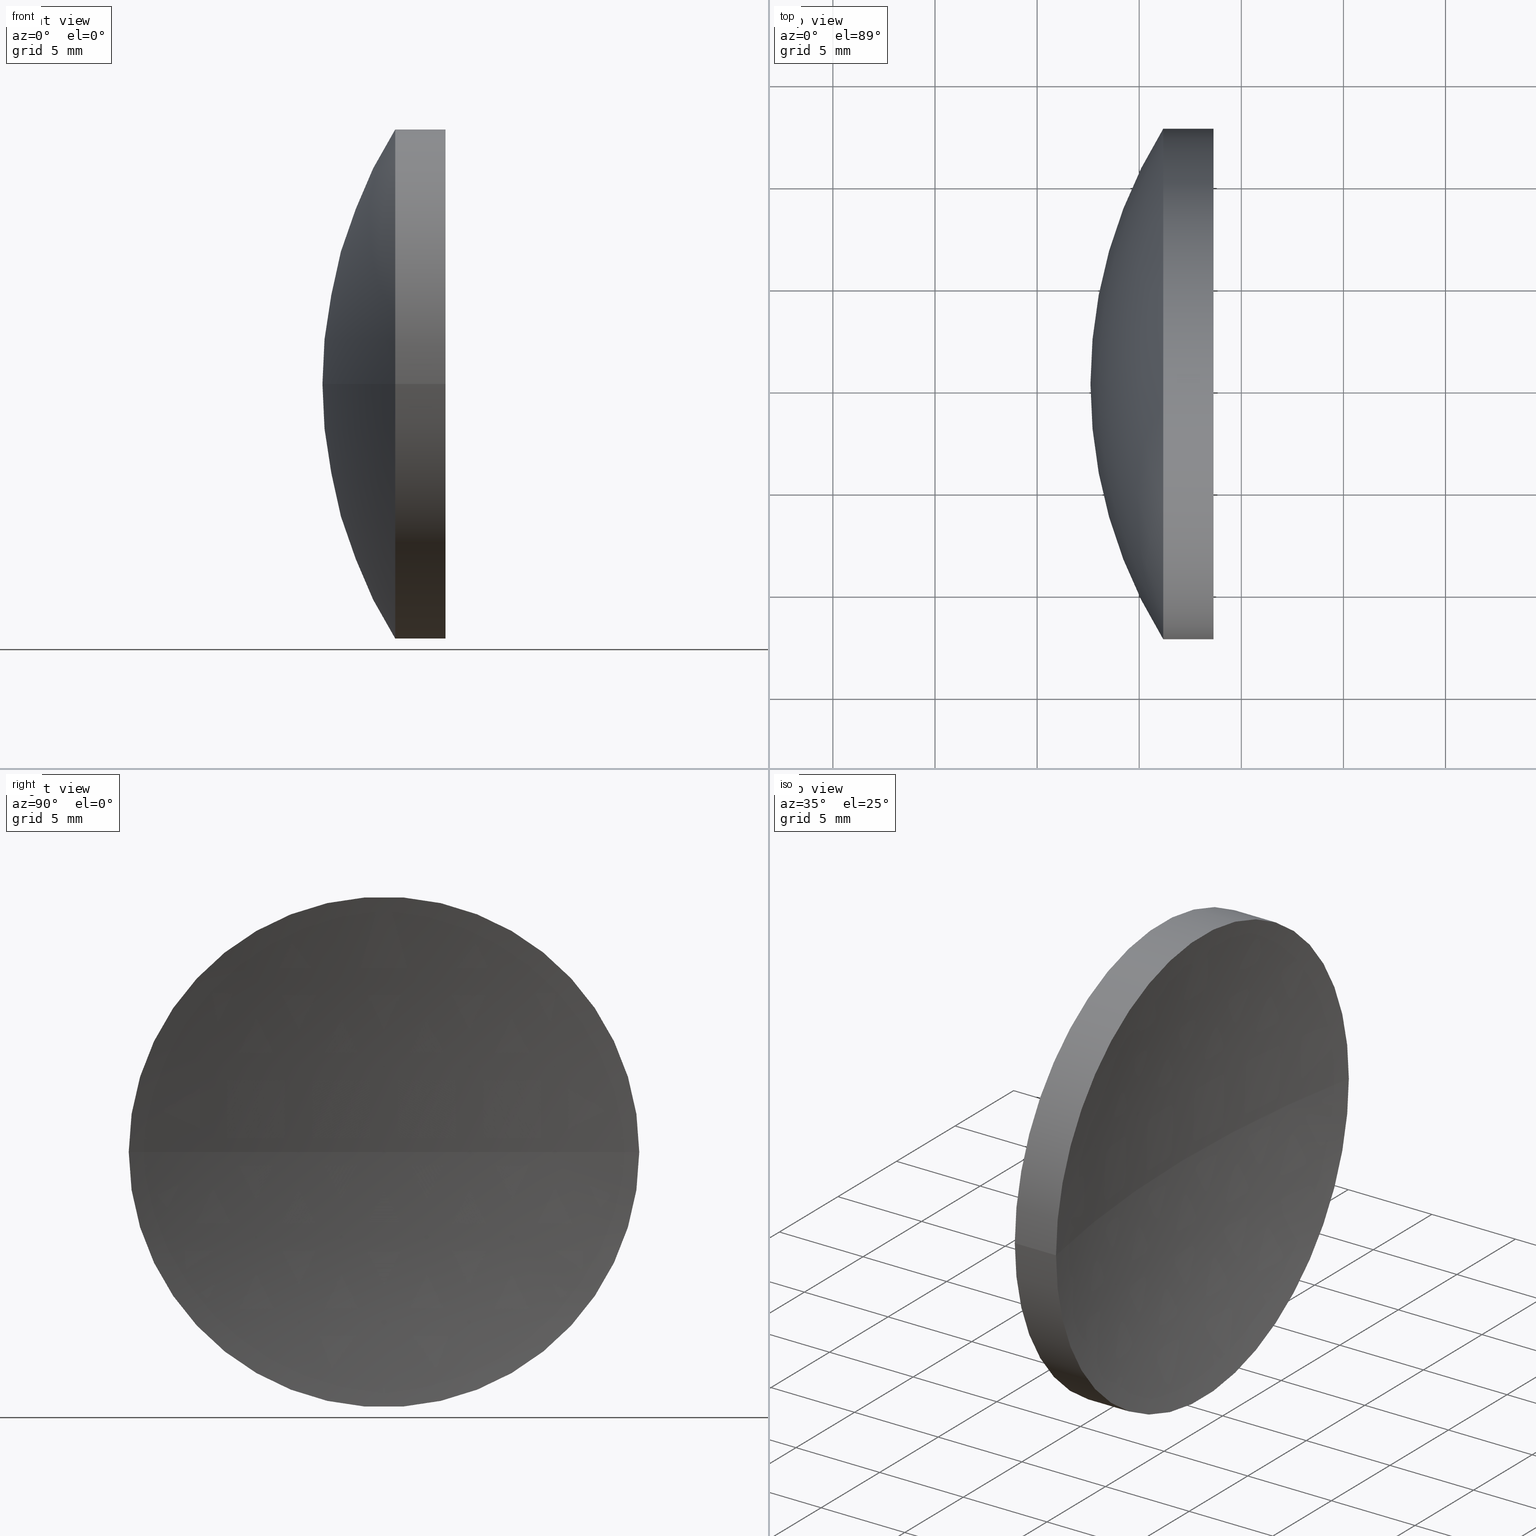
[diagram: canonical four-view strip — front | top / right | iso, engineering-drawing reading convention]
A machine part, canonical four-view strip (front | top / right | iso — engineering-drawing reading convention). The complete STEP part file that produces these views, byte-faithful:
ISO-10303-21;
HEADER;
FILE_DESCRIPTION (( 'STEP AP214' ),
    '1' );
FILE_NAME ('150005.STEP',
    '2019-07-04T03:22:05',
    ( '' ),
    ( '' ),
    'SwSTEP 2.0',
    'SolidWorks 2016',
    '' );
FILE_SCHEMA (( 'AUTOMOTIVE_DESIGN' ));
ENDSEC;

DATA;
#1 = EDGE_CURVE ( 'NONE', #27, #183, #155, .T. ) ;
#2 = FACE_OUTER_BOUND ( 'NONE', #182, .T. ) ;
#3 =( NAMED_UNIT ( * ) PLANE_ANGLE_UNIT ( ) SI_UNIT ( $, .RADIAN. ) );
#4 =( NAMED_UNIT ( * ) SI_UNIT ( $, .STERADIAN. ) SOLID_ANGLE_UNIT ( ) );
#5 = AXIS2_PLACEMENT_3D ( 'NONE', #48, #91, #138 ) ;
#6 = ORIENTED_EDGE ( 'NONE', *, *, #161, .F. ) ;
#7 = DIRECTION ( 'NONE',  ( 1.110223024625157900E-015, -1.000000000000000000, 0.0000000000000000000 ) ) ;
#8 = CARTESIAN_POINT ( 'NONE',  ( 115.9444912979631500, 77.71684047094031200, 1.530808498934189500E-015 ) ) ;
#9 = ADVANCED_BREP_SHAPE_REPRESENTATION ( '150005', ( #96, #83 ), #137 ) ;
#10 = ORIENTED_EDGE ( 'NONE', *, *, #1, .T. ) ;
#11 = EDGE_CURVE ( 'NONE', #98, #24, #36, .T. ) ;
#12 = ORIENTED_EDGE ( 'NONE', *, *, #41, .T. ) ;
#13 = PRESENTATION_LAYER_ASSIGNMENT (  '', '', ( #117 ) ) ;
#14 = AXIS2_PLACEMENT_3D ( 'NONE', #173, #75, #93 ) ;
#15 = ORIENTED_EDGE ( 'NONE', *, *, #161, .T. ) ;
#16 =( LENGTH_UNIT ( ) NAMED_UNIT ( * ) SI_UNIT ( .MILLI., .METRE. ) );
#17 = CARTESIAN_POINT ( 'NONE',  ( 115.9444912979631800, 52.71684047094034000, 0.0000000000000000000 ) ) ;
#18 = CARTESIAN_POINT ( 'NONE',  ( 191.6121934833099700, 65.21684047094032600, 0.0000000000000000000 ) ) ;
#19 = AXIS2_PLACEMENT_3D ( 'NONE', #51, #143, #188 ) ;
#20 = DIRECTION ( 'NONE',  ( 0.0000000000000000000, -1.000000000000000000, 0.0000000000000000000 ) ) ;
#21 = PRESENTATION_STYLE_ASSIGNMENT (( #37 ) ) ;
#22 = CARTESIAN_POINT ( 'NONE',  ( 128.6408507947504100, 77.71684047094034000, 0.0000000000000000000 ) ) ;
#23 = DIRECTION ( 'NONE',  ( -1.000000000000000000, -6.937607244762875000E-016, -0.0000000000000000000 ) ) ;
#24 = VERTEX_POINT ( 'NONE', #88 ) ;
#25 = EDGE_CURVE ( 'NONE', #98, #27, #192, .T. ) ;
#26 = CIRCLE ( 'NONE', #58, 12.49999999999999100 ) ;
#27 = VERTEX_POINT ( 'NONE', #45 ) ;
#28 = EDGE_CURVE ( 'NONE', #183, #86, #151, .T. ) ;
#29 = APPLICATION_PROTOCOL_DEFINITION ( 'draft international standard', 'automotive_design', 1998, #74 ) ;
#30 = COLOUR_RGB ( '',1.000000000000000000, 1.000000000000000000, 1.000000000000000000 ) ;
#31 = ORIENTED_EDGE ( 'NONE', *, *, #11, .T. ) ;
#32 = DIRECTION ( 'NONE',  ( 0.0000000000000000000, 0.0000000000000000000, -1.000000000000000000 ) ) ;
#33 = PRODUCT_DEFINITION ( 'δ֪', '', #124, #95 ) ;
#34 = DIRECTION ( 'NONE',  ( 1.000000000000000000, 0.0000000000000000000, 0.0000000000000000000 ) ) ;
#35 = CARTESIAN_POINT ( 'NONE',  ( 128.6408507947504300, 65.21684047094034000, 0.0000000000000000000 ) ) ;
#36 = CIRCLE ( 'NONE', #115, 64.20000000000000300 ) ;
#37 = SURFACE_STYLE_USAGE ( .BOTH. , #79 ) ;
#38 = ADVANCED_FACE ( 'NONE', ( #97 ), #59, .F. ) ;
#39 = CARTESIAN_POINT ( 'NONE',  ( 115.9444912979631700, 65.21684047094032600, 0.0000000000000000000 ) ) ;
#40 = ADVANCED_FACE ( 'NONE', ( #2 ), #141, .F. ) ;
#41 = EDGE_CURVE ( 'NONE', #125, #86, #65, .T. ) ;
#42 = EDGE_LOOP ( 'NONE', ( #118, #56, #12 ) ) ;
#43 = EDGE_CURVE ( 'NONE', #27, #98, #109, .T. ) ;
#44 = CYLINDRICAL_SURFACE ( 'NONE', #190, 12.49999999999998400 ) ;
#45 = CARTESIAN_POINT ( 'NONE',  ( 128.6408507947504600, 52.71684047094027600, -1.530808498934191500E-015 ) ) ;
#46 = DIRECTION ( 'NONE',  ( 1.000000000000000000, 0.0000000000000000000, 0.0000000000000000000 ) ) ;
#47 = UNCERTAINTY_MEASURE_WITH_UNIT (LENGTH_MEASURE( 1.000000000000000100E-005 ), #80, 'distance_accuracy_value', 'NONE');
#48 = CARTESIAN_POINT ( 'NONE',  ( 146.3121936984948400, 65.21684047094029800, 0.0000000000000000000 ) ) ;
#49 = AXIS2_PLACEMENT_3D ( 'NONE', #18, #32, #152 ) ;
#50 = DIRECTION ( 'NONE',  ( -0.0000000000000000000, 0.0000000000000000000, -1.000000000000000000 ) ) ;
#51 = CARTESIAN_POINT ( 'NONE',  ( 191.6121934833099700, 65.21684047094032600, 0.0000000000000000000 ) ) ;
#52 = ORIENTED_EDGE ( 'NONE', *, *, #63, .F. ) ;
#53 = VECTOR ( 'NONE', #144, 1000.000000000000000 ) ;
#54 = DIRECTION ( 'NONE',  ( 0.0000000000000000000, -1.000000000000000000, 0.0000000000000000000 ) ) ;
#55 = CARTESIAN_POINT ( 'NONE',  ( 126.1766529806496800, 65.21684047094034000, 0.0000000000000000000 ) ) ;
#56 = ORIENTED_EDGE ( 'NONE', *, *, #63, .T. ) ;
#57 = EDGE_CURVE ( 'NONE', #27, #24, #68, .T. ) ;
#58 = AXIS2_PLACEMENT_3D ( 'NONE', #127, #23, #54 ) ;
#59 = SPHERICAL_SURFACE ( 'NONE', #49, 64.20000000000000300 ) ;
#60 = APPLICATION_CONTEXT ( 'automotive_design' ) ;
#61 = DIRECTION ( 'NONE',  ( 1.000000000000000000, 0.0000000000000000000, 0.0000000000000000000 ) ) ;
#62 = UNCERTAINTY_MEASURE_WITH_UNIT (LENGTH_MEASURE( 1.000000000000000100E-005 ), #104, 'distance_accuracy_value', 'NONE');
#63 = EDGE_CURVE ( 'NONE', #183, #125, #26, .T. ) ;
#64 = DIRECTION ( 'NONE',  ( 0.0000000000000000000, -0.0000000000000000000, 1.000000000000000000 ) ) ;
#65 = CIRCLE ( 'NONE', #90, 23.70000000000002800 ) ;
#66 = DIRECTION ( 'NONE',  ( -1.171121333992780600E-015, 1.000000000000000000, 0.0000000000000000000 ) ) ;
#67 = DIRECTION ( 'NONE',  ( -1.171121333992780600E-015, 1.000000000000000000, 0.0000000000000000000 ) ) ;
#68 = CIRCLE ( 'NONE', #19, 64.19999999999998900 ) ;
#69 = EDGE_LOOP ( 'NONE', ( #164, #163, #116 ) ) ;
#70 = SURFACE_STYLE_FILL_AREA ( #122 ) ;
#71 = AXIS2_PLACEMENT_3D ( 'NONE', #76, #108, #20 ) ;
#72 = SURFACE_SIDE_STYLE ('',( #70 ) ) ;
#73 = ORIENTED_EDGE ( 'NONE', *, *, #43, .T. ) ;
#74 = APPLICATION_CONTEXT ( 'automotive_design' ) ;
#75 = DIRECTION ( 'NONE',  ( 0.0000000000000000000, 0.0000000000000000000, -1.000000000000000000 ) ) ;
#76 = CARTESIAN_POINT ( 'NONE',  ( 128.6408507947504300, 65.21684047094034000, 0.0000000000000000000 ) ) ;
#77 = EDGE_LOOP ( 'NONE', ( #113, #89, #103 ) ) ;
#78 = DIRECTION ( 'NONE',  ( -1.000000000000000000, -6.937607244762875000E-016, -0.0000000000000000000 ) ) ;
#79 = SURFACE_SIDE_STYLE ('',( #146 ) ) ;
#80 =( LENGTH_UNIT ( ) NAMED_UNIT ( * ) SI_UNIT ( .MILLI., .METRE. ) );
#81 = CYLINDRICAL_SURFACE ( 'NONE', #126, 12.49999999999998400 ) ;
#82 = PRESENTATION_LAYER_ASSIGNMENT (  '', '', ( #180 ) ) ;
#83 = AXIS2_PLACEMENT_3D ( 'NONE', #85, #101, #61 ) ;
#84 = EDGE_LOOP ( 'NONE', ( #6, #189, #10, #168 ) ) ;
#85 = CARTESIAN_POINT ( 'NONE',  ( 0.0000000000000000000, 0.0000000000000000000, 0.0000000000000000000 ) ) ;
#86 = VERTEX_POINT ( 'NONE', #107 ) ;
#87 = FACE_OUTER_BOUND ( 'NONE', #42, .T. ) ;
#88 = CARTESIAN_POINT ( 'NONE',  ( 127.4121934833099500, 65.21684047094028400, 0.0000000000000000000 ) ) ;
#89 = ORIENTED_EDGE ( 'NONE', *, *, #28, .T. ) ;
#90 = AXIS2_PLACEMENT_3D ( 'NONE', #153, #174, #34 ) ;
#91 = DIRECTION ( 'NONE',  ( -8.496118506040342700E-032, 1.224646799147353200E-016, -1.000000000000000000 ) ) ;
#92 = PRODUCT ( '150005', '150005', '', ( #181 ) ) ;
#93 = DIRECTION ( 'NONE',  ( -8.646596764993431500E-016, 1.000000000000000000, 0.0000000000000000000 ) ) ;
#94 = DIRECTION ( 'NONE',  ( -1.000000000000000000, -6.937607244762875000E-016, -0.0000000000000000000 ) ) ;
#95 = PRODUCT_DEFINITION_CONTEXT ( 'detailed design', #60, 'design' ) ;
#96 = MANIFOLD_SOLID_BREP ( '��ת1', #134 ) ;
#97 = FACE_OUTER_BOUND ( 'NONE', #69, .T. ) ;
#98 = VERTEX_POINT ( 'NONE', #22 ) ;
#99 = PRODUCT_RELATED_PRODUCT_CATEGORY ( 'part', '', ( #92 ) ) ;
#100 =( GEOMETRIC_REPRESENTATION_CONTEXT ( 3 ) GLOBAL_UNCERTAINTY_ASSIGNED_CONTEXT ( ( #47 ) ) GLOBAL_UNIT_ASSIGNED_CONTEXT ( ( #80, #157, #159 ) ) REPRESENTATION_CONTEXT ( 'NONE', 'WORKASPACE' ) );
#101 = DIRECTION ( 'NONE',  ( 0.0000000000000000000, 0.0000000000000000000, 1.000000000000000000 ) ) ;
#102 =( NAMED_UNIT ( * ) PLANE_ANGLE_UNIT ( ) SI_UNIT ( $, .RADIAN. ) );
#103 = ORIENTED_EDGE ( 'NONE', *, *, #41, .F. ) ;
#104 =( LENGTH_UNIT ( ) NAMED_UNIT ( * ) SI_UNIT ( .MILLI., .METRE. ) );
#105 =( NAMED_UNIT ( * ) SI_UNIT ( $, .STERADIAN. ) SOLID_ANGLE_UNIT ( ) );
#106 = PRESENTATION_STYLE_ASSIGNMENT (( #121 ) ) ;
#107 = CARTESIAN_POINT ( 'NONE',  ( 122.6121936984948100, 65.21684047094028400, 0.0000000000000000000 ) ) ;
#108 = DIRECTION ( 'NONE',  ( -1.000000000000000000, -6.937607244762875000E-016, -0.0000000000000000000 ) ) ;
#109 = CIRCLE ( 'NONE', #71, 12.49999999999999100 ) ;
#110 = DIRECTION ( 'NONE',  ( 1.110223024625157900E-015, -1.000000000000000000, 0.0000000000000000000 ) ) ;
#111 = ADVANCED_FACE ( 'NONE', ( #149 ), #177, .T. ) ;
#112 = CARTESIAN_POINT ( 'NONE',  ( 126.1766529806496800, 77.71684047094034000, 1.530808498934190300E-015 ) ) ;
#113 = ORIENTED_EDGE ( 'NONE', *, *, #145, .T. ) ;
#114 = COLOUR_RGB ( '',1.000000000000000000, 1.000000000000000000, 1.000000000000000000 ) ;
#115 = AXIS2_PLACEMENT_3D ( 'NONE', #169, #64, #46 ) ;
#116 = ORIENTED_EDGE ( 'NONE', *, *, #11, .F. ) ;
#117 = STYLED_ITEM ( 'NONE', ( #106 ), #9 ) ;
#118 = ORIENTED_EDGE ( 'NONE', *, *, #28, .F. ) ;
#119 = EDGE_LOOP ( 'NONE', ( #73, #15, #52, #172 ) ) ;
#120 = FILL_AREA_STYLE_COLOUR ( '', #114 ) ;
#121 = SURFACE_STYLE_USAGE ( .BOTH. , #72 ) ;
#122 = FILL_AREA_STYLE ('',( #120 ) ) ;
#123 = FACE_OUTER_BOUND ( 'NONE', #119, .T. ) ;
#124 = PRODUCT_DEFINITION_FORMATION_WITH_SPECIFIED_SOURCE ( '�κ�', '', #92, .NOT_KNOWN. ) ;
#125 = VERTEX_POINT ( 'NONE', #112 ) ;
#126 = AXIS2_PLACEMENT_3D ( 'NONE', #130, #176, #7 ) ;
#127 = CARTESIAN_POINT ( 'NONE',  ( 126.1766529806496800, 65.21684047094034000, 0.0000000000000000000 ) ) ;
#128 = ADVANCED_FACE ( 'NONE', ( #165 ), #81, .T. ) ;
#129 =( GEOMETRIC_REPRESENTATION_CONTEXT ( 3 ) GLOBAL_UNCERTAINTY_ASSIGNED_CONTEXT ( ( #171 ) ) GLOBAL_UNIT_ASSIGNED_CONTEXT ( ( #16, #102, #105 ) ) REPRESENTATION_CONTEXT ( 'NONE', 'WORKASPACE' ) );
#130 = CARTESIAN_POINT ( 'NONE',  ( 115.9444912979631700, 65.21684047094032600, 0.0000000000000000000 ) ) ;
#131 = CARTESIAN_POINT ( 'NONE',  ( 146.3121936984948400, 65.21684047094029800, 0.0000000000000000000 ) ) ;
#132 = ADVANCED_FACE ( 'NONE', ( #87 ), #133, .T. ) ;
#133 = SPHERICAL_SURFACE ( 'NONE', #154, 23.70000000000001400 ) ;
#134 = CLOSED_SHELL ( 'NONE', ( #111, #162, #38, #40, #128, #132 ) ) ;
#135 = APPLICATION_PROTOCOL_DEFINITION ( 'draft international standard', 'automotive_design', 1998, #60 ) ;
#136 = CARTESIAN_POINT ( 'NONE',  ( 126.1766529806496800, 52.71684047094034800, 0.0000000000000000000 ) ) ;
#137 =( GEOMETRIC_REPRESENTATION_CONTEXT ( 3 ) GLOBAL_UNCERTAINTY_ASSIGNED_CONTEXT ( ( #62 ) ) GLOBAL_UNIT_ASSIGNED_CONTEXT ( ( #104, #3, #4 ) ) REPRESENTATION_CONTEXT ( 'NONE', 'WORKASPACE' ) );
#138 = DIRECTION ( 'NONE',  ( 0.0000000000000000000, 1.000000000000000000, 1.224646799147353200E-016 ) ) ;
#139 = FILL_AREA_STYLE_COLOUR ( '', #30 ) ;
#140 = DIRECTION ( 'NONE',  ( 0.0000000000000000000, -1.000000000000000000, 0.0000000000000000000 ) ) ;
#141 = SPHERICAL_SURFACE ( 'NONE', #14, 64.20000000000000300 ) ;
#142 = DIRECTION ( 'NONE',  ( -0.0000000000000000000, 0.0000000000000000000, -1.000000000000000000 ) ) ;
#143 = DIRECTION ( 'NONE',  ( -8.496118506040342700E-032, 1.224646799147353200E-016, -1.000000000000000000 ) ) ;
#144 = DIRECTION ( 'NONE',  ( -1.000000000000000000, -6.937607244762875000E-016, -0.0000000000000000000 ) ) ;
#145 = EDGE_CURVE ( 'NONE', #125, #183, #184, .T. ) ;
#146 = SURFACE_STYLE_FILL_AREA ( #158 ) ;
#147 = MECHANICAL_DESIGN_GEOMETRIC_PRESENTATION_REPRESENTATION (  '', ( #117 ), #129 ) ;
#148 = ORIENTED_EDGE ( 'NONE', *, *, #57, .F. ) ;
#149 = FACE_OUTER_BOUND ( 'NONE', #77, .T. ) ;
#150 = SHAPE_DEFINITION_REPRESENTATION ( #167, #9 ) ;
#151 = CIRCLE ( 'NONE', #5, 23.70000000000001400 ) ;
#152 = DIRECTION ( 'NONE',  ( -8.646596764993431500E-016, 1.000000000000000000, 0.0000000000000000000 ) ) ;
#153 = CARTESIAN_POINT ( 'NONE',  ( 146.3121936984948400, 65.21684047094029800, 0.0000000000000000000 ) ) ;
#154 = AXIS2_PLACEMENT_3D ( 'NONE', #131, #50, #66 ) ;
#155 = LINE ( 'NONE', #17, #186 ) ;
#156 = DIRECTION ( 'NONE',  ( 0.0000000000000000000, -1.000000000000000000, 0.0000000000000000000 ) ) ;
#157 =( NAMED_UNIT ( * ) PLANE_ANGLE_UNIT ( ) SI_UNIT ( $, .RADIAN. ) );
#158 = FILL_AREA_STYLE ('',( #139 ) ) ;
#159 =( NAMED_UNIT ( * ) SI_UNIT ( $, .STERADIAN. ) SOLID_ANGLE_UNIT ( ) );
#160 = LINE ( 'NONE', #8, #53 ) ;
#161 = EDGE_CURVE ( 'NONE', #98, #125, #160, .T. ) ;
#162 = ADVANCED_FACE ( 'NONE', ( #123 ), #44, .T. ) ;
#163 = ORIENTED_EDGE ( 'NONE', *, *, #57, .T. ) ;
#164 = ORIENTED_EDGE ( 'NONE', *, *, #43, .F. ) ;
#165 = FACE_OUTER_BOUND ( 'NONE', #84, .T. ) ;
#166 = AXIS2_PLACEMENT_3D ( 'NONE', #55, #175, #140 ) ;
#167 = PRODUCT_DEFINITION_SHAPE ( 'NONE', 'NONE',  #33 ) ;
#168 = ORIENTED_EDGE ( 'NONE', *, *, #145, .F. ) ;
#169 = CARTESIAN_POINT ( 'NONE',  ( 191.6121934833099700, 65.21684047094032600, 0.0000000000000000000 ) ) ;
#170 = AXIS2_PLACEMENT_3D ( 'NONE', #35, #185, #156 ) ;
#171 = UNCERTAINTY_MEASURE_WITH_UNIT (LENGTH_MEASURE( 1.000000000000000100E-005 ), #16, 'distance_accuracy_value', 'NONE');
#172 = ORIENTED_EDGE ( 'NONE', *, *, #1, .F. ) ;
#173 = CARTESIAN_POINT ( 'NONE',  ( 191.6121934833099700, 65.21684047094032600, 0.0000000000000000000 ) ) ;
#174 = DIRECTION ( 'NONE',  ( -0.0000000000000000000, 0.0000000000000000000, 1.000000000000000000 ) ) ;
#175 = DIRECTION ( 'NONE',  ( -1.000000000000000000, -6.937607244762875000E-016, -0.0000000000000000000 ) ) ;
#176 = DIRECTION ( 'NONE',  ( -1.000000000000000000, -6.937607244762875000E-016, -0.0000000000000000000 ) ) ;
#177 = SPHERICAL_SURFACE ( 'NONE', #179, 23.70000000000001400 ) ;
#178 = ORIENTED_EDGE ( 'NONE', *, *, #25, .F. ) ;
#179 = AXIS2_PLACEMENT_3D ( 'NONE', #187, #142, #67 ) ;
#180 = STYLED_ITEM ( 'NONE', ( #21 ), #96 ) ;
#181 = PRODUCT_CONTEXT ( 'NONE', #74, 'mechanical' ) ;
#182 = EDGE_LOOP ( 'NONE', ( #148, #178, #31 ) ) ;
#183 = VERTEX_POINT ( 'NONE', #136 ) ;
#184 = CIRCLE ( 'NONE', #166, 12.49999999999999100 ) ;
#185 = DIRECTION ( 'NONE',  ( -1.000000000000000000, -6.937607244762875000E-016, -0.0000000000000000000 ) ) ;
#186 = VECTOR ( 'NONE', #78, 1000.000000000000000 ) ;
#187 = CARTESIAN_POINT ( 'NONE',  ( 146.3121936984948400, 65.21684047094029800, 0.0000000000000000000 ) ) ;
#188 = DIRECTION ( 'NONE',  ( 0.0000000000000000000, 1.000000000000000000, 1.224646799147353700E-016 ) ) ;
#189 = ORIENTED_EDGE ( 'NONE', *, *, #25, .T. ) ;
#190 = AXIS2_PLACEMENT_3D ( 'NONE', #39, #94, #110 ) ;
#191 = MECHANICAL_DESIGN_GEOMETRIC_PRESENTATION_REPRESENTATION (  '', ( #180 ), #100 ) ;
#192 = CIRCLE ( 'NONE', #170, 12.49999999999999100 ) ;
ENDSEC;
END-ISO-10303-21;
